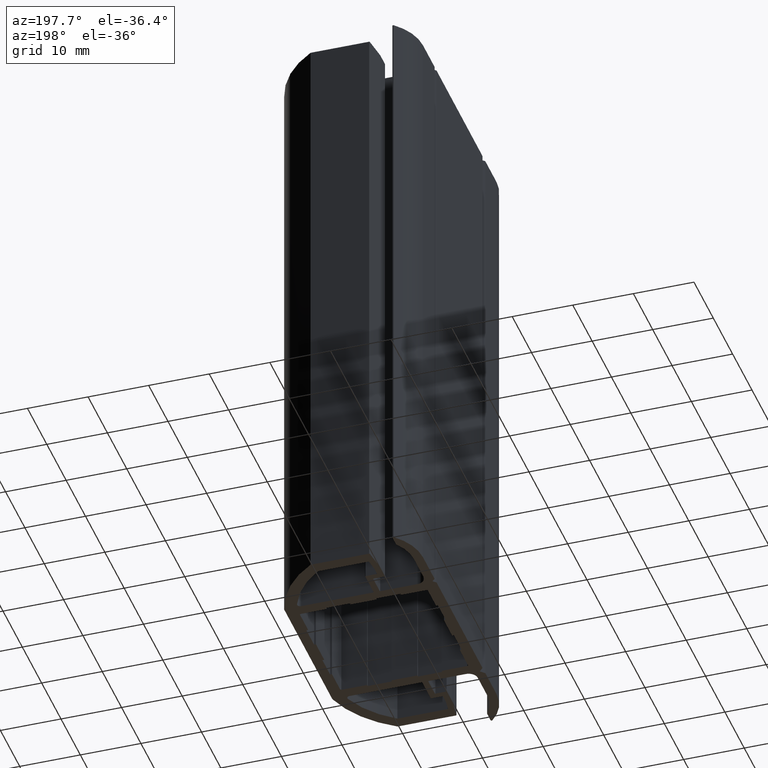
[diagram: clean part render]
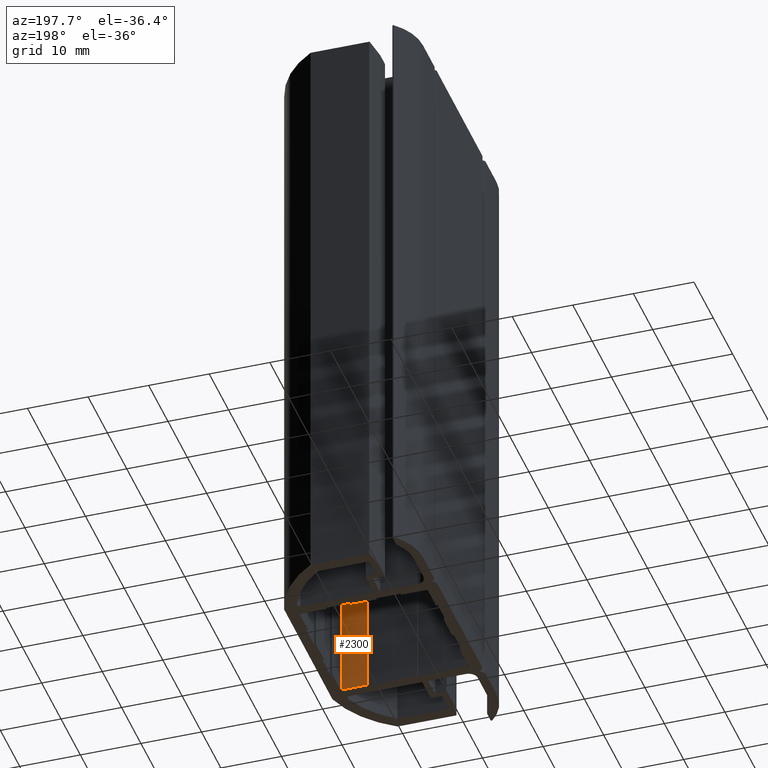
[diagram: same view with one face highlighted and labeled with its STEP entity id]
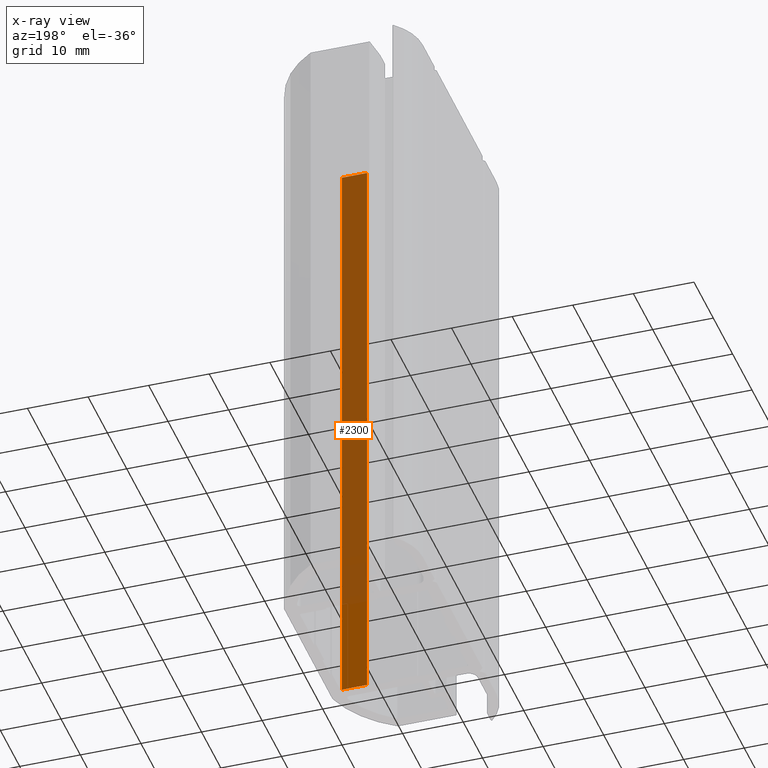
[diagram: x-ray of the same camera — body ghosted, the highlighted face saturated]
A machine part, auxiliary view. The second image highlights one B-rep face of the part: STEP entity #2300.
The next image is the same camera in x-ray: the body ghosted, the highlighted face saturated — about 84% of this face is hidden behind the body in this view.
In plain terms, the highlighted planar face has unit normal (-0, -1, 0).
Its self-contained STEP definition (entity closure, byte-faithful):
#178=FACE_OUTER_BOUND('',#296,.T.);
#296=EDGE_LOOP('',(#1609,#1610,#1611,#1612));
#456=LINE('',#3470,#720);
#457=LINE('',#3473,#721);
#458=LINE('',#3475,#722);
#459=LINE('',#3476,#723);
#720=VECTOR('',#2787,10.);
#721=VECTOR('',#2790,10.);
#722=VECTOR('',#2791,10.);
#723=VECTOR('',#2792,10.);
#975=VERTEX_POINT('',#3466);
#976=VERTEX_POINT('',#3468);
#977=VERTEX_POINT('',#3472);
#978=VERTEX_POINT('',#3474);
#1234=EDGE_CURVE('',#976,#975,#456,.T.);
#1235=EDGE_CURVE('',#975,#977,#457,.T.);
#1236=EDGE_CURVE('',#978,#976,#458,.T.);
#1237=EDGE_CURVE('',#978,#977,#459,.T.);
#1609=ORIENTED_EDGE('',*,*,#1235,.F.);
#1610=ORIENTED_EDGE('',*,*,#1234,.F.);
#1611=ORIENTED_EDGE('',*,*,#1236,.F.);
#1612=ORIENTED_EDGE('',*,*,#1237,.T.);
#2215=PLANE('',#2472);
#2300=ADVANCED_FACE('',(#178),#2215,.F.);
#2472=AXIS2_PLACEMENT_3D('',#3471,#2788,#2789);
#2787=DIRECTION('',(0.,0.,1.));
#2788=DIRECTION('center_axis',(-2.11471052309546E-15,-1.,0.));
#2789=DIRECTION('ref_axis',(1.,-2.11471052309546E-15,0.));
#2790=DIRECTION('',(-1.,2.11471052309546E-15,0.));
#2791=DIRECTION('',(1.,-2.11471052309546E-15,0.));
#2792=DIRECTION('',(0.,0.,1.));
#3466=CARTESIAN_POINT('',(10.3500000000001,-10.5499999999999,100.));
#3468=CARTESIAN_POINT('',(10.3500000000001,-10.5499999999999,0.));
#3470=CARTESIAN_POINT('',(10.3500000000001,-10.5499999999999,0.));
#3471=CARTESIAN_POINT('Origin',(6.14999999999992,-10.5499999999999,0.));
#3472=CARTESIAN_POINT('',(6.14999999999992,-10.5499999999999,100.));
#3473=CARTESIAN_POINT('',(3.07499999999995,-10.5499999999999,100.));
#3474=CARTESIAN_POINT('',(6.14999999999992,-10.5499999999999,0.));
#3475=CARTESIAN_POINT('',(3.07499999999995,-10.5499999999999,0.));
#3476=CARTESIAN_POINT('',(6.14999999999992,-10.5499999999999,0.));